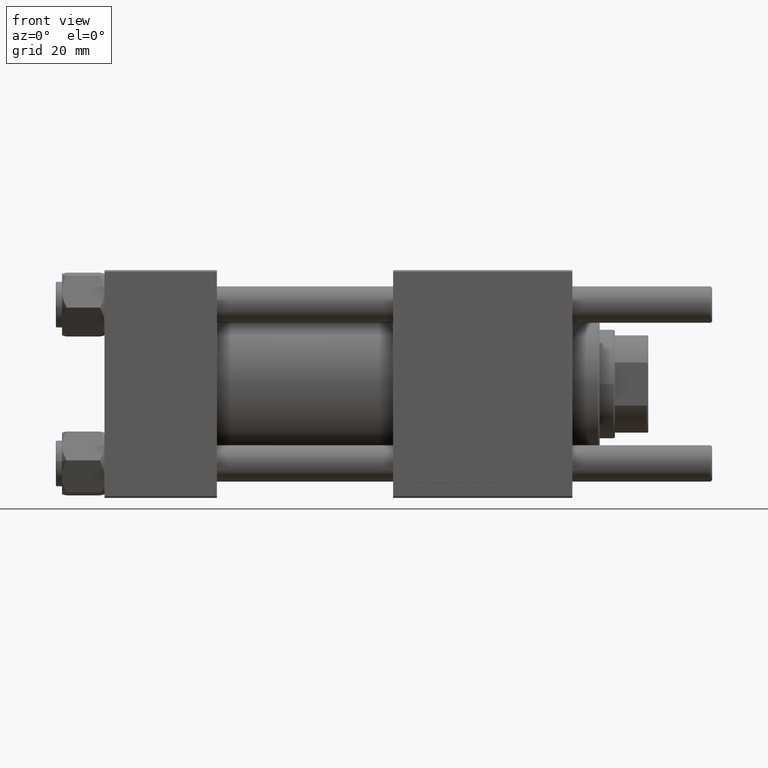
[diagram: clean part render]
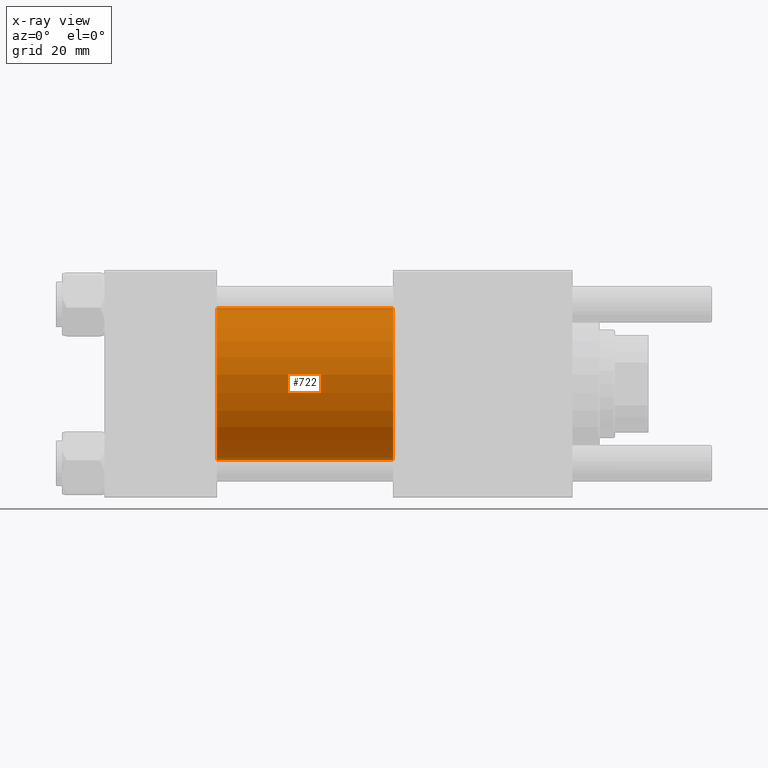
[diagram: x-ray — body ghosted, one internal face saturated and labeled with its STEP entity id]
A machine part, front view, then the same camera in x-ray: the body is ghosted and one INTERNAL B-rep face — a face not visible from any outside direction — is saturated and labeled: STEP entity #722.
In plain terms, the highlighted cylindrical surface (partial cylindrical patch) has radius 25 mm, axis along (-1, -0, -0).
Its self-contained STEP definition (entity closure, byte-faithful):
#722 = ADVANCED_FACE ( 'NONE', ( #54714 ), #28348, .F. ) ;
#830 = EDGE_LOOP ( 'NONE', ( #11465, #54423, #31360, #16912 ) ) ;
#2242 = DIRECTION ( 'NONE',  ( -1.000000000000000000, -0.000000000000000000, -0.000000000000000000 ) ) ;
#2994 = CARTESIAN_POINT ( 'NONE',  ( 95.00000000000000000, 4.595317839031718093E-16, -25.00000000000000000 ) ) ;
#5645 = EDGE_CURVE ( 'NONE', #35654, #27828, #14685, .T. ) ;
#8891 = VECTOR ( 'NONE', #26390, 1000.000000000000000 ) ;
#8904 = CARTESIAN_POINT ( 'NONE',  ( 95.00000000000000000, -2.602085213965210642E-15, 25.00000000000000000 ) ) ;
#9180 = LINE ( 'NONE', #8904, #8891 ) ;
#10012 = CARTESIAN_POINT ( 'NONE',  ( 37.00000000000000000, -2.602085213965210642E-15, 25.00000000000000000 ) ) ;
#11126 = CARTESIAN_POINT ( 'NONE',  ( 95.00000000000000000, 4.595317839031718093E-16, -25.00000000000000000 ) ) ;
#11465 = ORIENTED_EDGE ( 'NONE', *, *, #24451, .T. ) ;
#14685 = CIRCLE ( 'NONE', #36651, 25.00000000000000000 ) ;
#16912 = ORIENTED_EDGE ( 'NONE', *, *, #32909, .F. ) ;
#17260 = DIRECTION ( 'NONE',  ( 0.000000000000000000, 0.000000000000000000, -1.000000000000000000 ) ) ;
#17303 = VECTOR ( 'NONE', #51178, 1000.000000000000000 ) ;
#17533 = LINE ( 'NONE', #2994, #17303 ) ;
#17713 = CARTESIAN_POINT ( 'NONE',  ( 95.00000000000000000, -2.602085213965210642E-15, 0.000000000000000000 ) ) ;
#22015 = DIRECTION ( 'NONE',  ( 0.000000000000000000, 0.000000000000000000, -1.000000000000000000 ) ) ;
#22123 = DIRECTION ( 'NONE',  ( 1.000000000000000000, 0.000000000000000000, 0.000000000000000000 ) ) ;
#24451 = EDGE_CURVE ( 'NONE', #39583, #45572, #40713, .T. ) ;
#24596 = AXIS2_PLACEMENT_3D ( 'NONE', #35334, #2242, #36936 ) ;
#26390 = DIRECTION ( 'NONE',  ( -1.000000000000000000, -0.000000000000000000, -0.000000000000000000 ) ) ;
#27828 = VERTEX_POINT ( 'NONE', #32627 ) ;
#28348 = CYLINDRICAL_SURFACE ( 'NONE', #24596, 25.00000000000000000 ) ;
#30341 = DIRECTION ( 'NONE',  ( 1.000000000000000000, 0.000000000000000000, 0.000000000000000000 ) ) ;
#31360 = ORIENTED_EDGE ( 'NONE', *, *, #5645, .F. ) ;
#32627 = CARTESIAN_POINT ( 'NONE',  ( 37.00000000000000000, 4.595317839031718093E-16, -25.00000000000000000 ) ) ;
#32909 = EDGE_CURVE ( 'NONE', #39583, #35654, #9180, .T. ) ;
#34581 = EDGE_CURVE ( 'NONE', #45572, #27828, #17533, .T. ) ;
#35334 = CARTESIAN_POINT ( 'NONE',  ( 95.00000000000000000, -2.602085213965210642E-15, 0.000000000000000000 ) ) ;
#35654 = VERTEX_POINT ( 'NONE', #10012 ) ;
#36651 = AXIS2_PLACEMENT_3D ( 'NONE', #53076, #22123, #17260 ) ;
#36936 = DIRECTION ( 'NONE',  ( 0.000000000000000000, 0.000000000000000000, 1.000000000000000000 ) ) ;
#39583 = VERTEX_POINT ( 'NONE', #47105 ) ;
#40713 = CIRCLE ( 'NONE', #54444, 25.00000000000000000 ) ;
#45572 = VERTEX_POINT ( 'NONE', #11126 ) ;
#47105 = CARTESIAN_POINT ( 'NONE',  ( 95.00000000000000000, -2.602085213965210642E-15, 25.00000000000000000 ) ) ;
#51178 = DIRECTION ( 'NONE',  ( -1.000000000000000000, -0.000000000000000000, -0.000000000000000000 ) ) ;
#53076 = CARTESIAN_POINT ( 'NONE',  ( 37.00000000000000000, -2.602085213965210642E-15, 0.000000000000000000 ) ) ;
#54423 = ORIENTED_EDGE ( 'NONE', *, *, #34581, .T. ) ;
#54444 = AXIS2_PLACEMENT_3D ( 'NONE', #17713, #30341, #22015 ) ;
#54714 = FACE_OUTER_BOUND ( 'NONE', #830, .T. ) ;